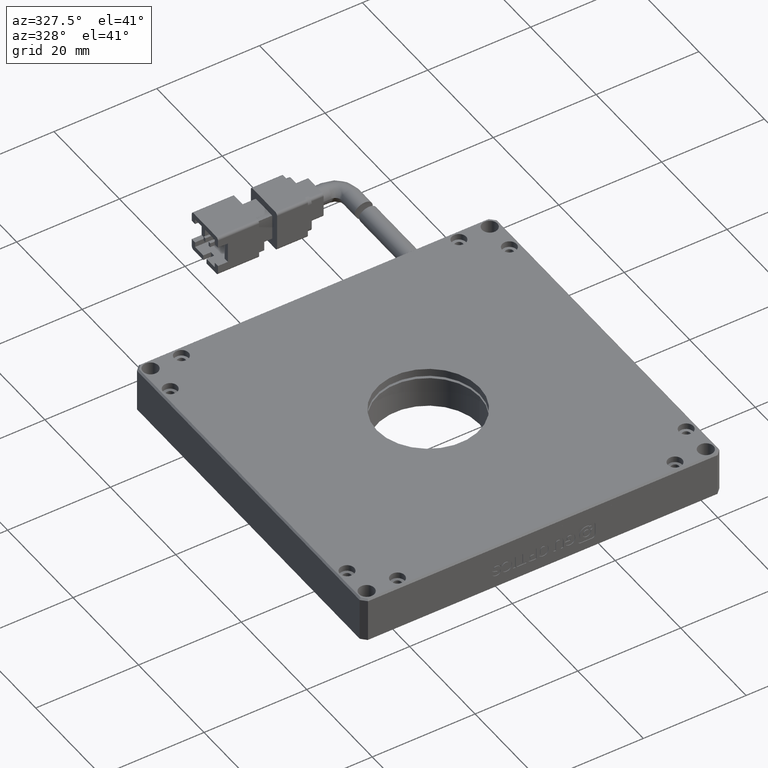
[diagram: clean part render]
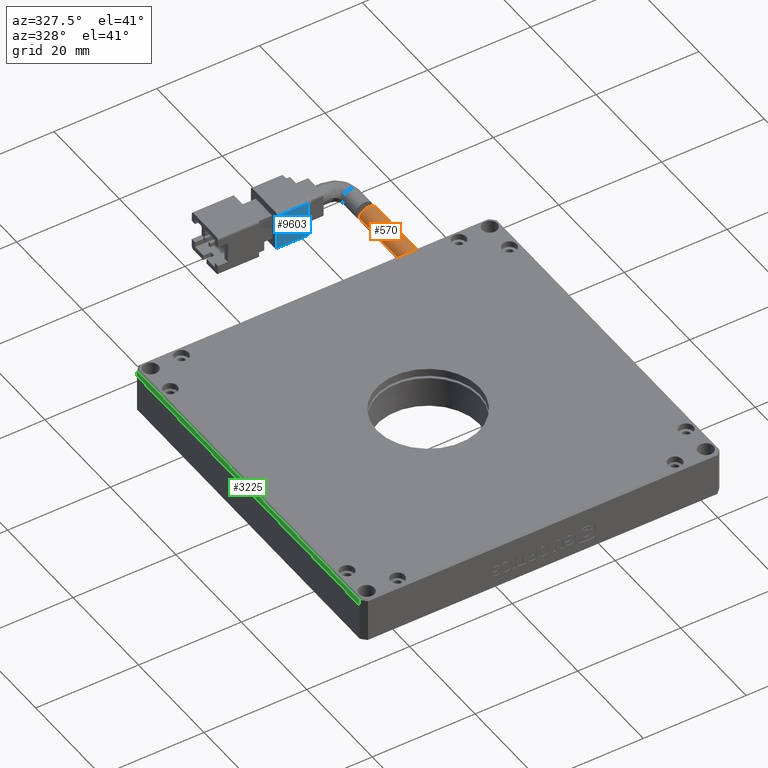
[diagram: same view with three faces highlighted in distinct colors, each labeled with its STEP entity id]
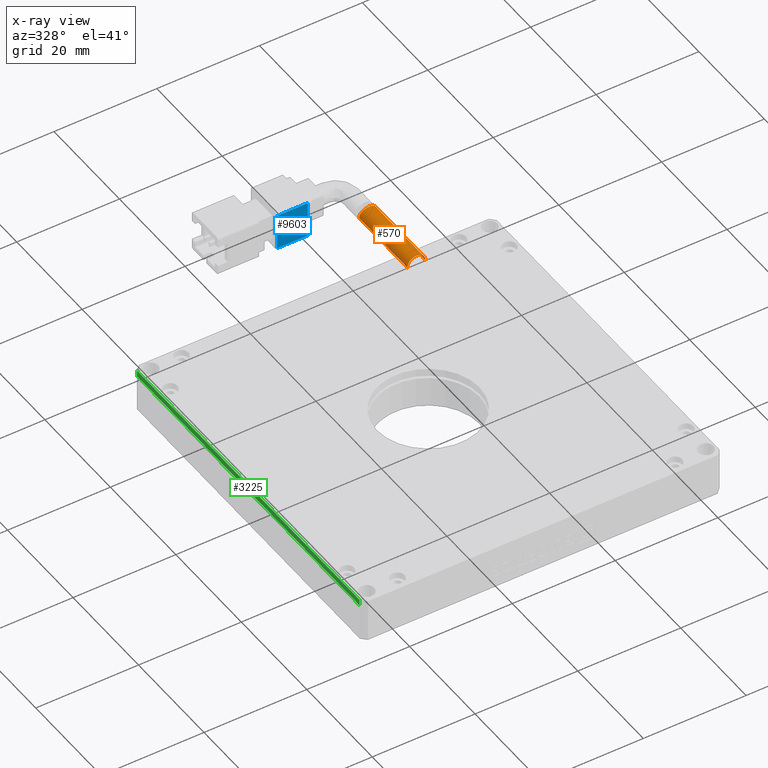
[diagram: x-ray of the same camera — body ghosted, the three highlighted faces saturated]
A machine part, auxiliary view with three faces highlighted in distinct colors.
The next image is the same camera in x-ray (body ghosted, the three faces saturated) — at least one of them is partly hidden behind the body in this view.
Their STEP definitions:

[orange] entity #570 — the highlighted cylindrical surface (edge-blend (fillet) strip) has radius 1.75 mm, axis along (0, -1, 0).
#85 = ORIENTED_EDGE ( 'NONE', *, *, #14717, .T. ) ;
#134 = CARTESIAN_POINT ( 'NONE',  ( 9.283692893400997900, 72.53591370558376600, 2.499999999999999600 ) ) ;
#570 = ADVANCED_FACE ( 'NONE', ( #13747 ), #11705, .T. ) ;
#1171 = CARTESIAN_POINT ( 'NONE',  ( 9.283692893401001500, 87.31675363808106700, 2.616052899521373700 ) ) ;
#1324 = CARTESIAN_POINT ( 'NONE',  ( 7.079876373890419600, 87.08334259466364800, 4.194023032864307300 ) ) ;
#1543 = CARTESIAN_POINT ( 'NONE',  ( 6.215091311080883900, 87.17399201523764400, 3.656271316457953900 ) ) ;
#2158 = CARTESIAN_POINT ( 'NONE',  ( 5.783692893400998800, 92.53591370558376600, 2.499999999999999600 ) ) ;
#2344 = EDGE_CURVE ( 'NONE', #17875, #17195, #19804, .T. ) ;
#2431 = DIRECTION ( 'NONE',  ( -0.0000000000000000000, 1.000000000000000000, -0.0000000000000000000 ) ) ;
#2841 = CARTESIAN_POINT ( 'NONE',  ( 7.421400568359374900, 87.08306173962964200, 4.250139874401408900 ) ) ;
#3207 = CARTESIAN_POINT ( 'NONE',  ( 5.783692893400999700, 87.27963314474406800, 2.499999999999999600 ) ) ;
#4382 = CARTESIAN_POINT ( 'NONE',  ( 9.051711307917891200, 87.27145208878776800, 3.378172957527924700 ) ) ;
#4497 = LINE ( 'NONE', #14418, #17063 ) ;
#4787 = CARTESIAN_POINT ( 'NONE',  ( 6.143040684642113700, 87.18863472532295600, 3.568417009494727400 ) ) ;
#5267 = DIRECTION ( 'NONE',  ( -1.000000000000000000, 0.0000000000000000000, 0.0000000000000000000 ) ) ;
#5439 = AXIS2_PLACEMENT_3D ( 'NONE', #10316, #7124, #5267 ) ;
#5515 = VERTEX_POINT ( 'NONE', #9505 ) ;
#6019 = CARTESIAN_POINT ( 'NONE',  ( 8.850826751519770500, 87.23514335908910800, 3.657841488376060400 ) ) ;
#6237 = CARTESIAN_POINT ( 'NONE',  ( 9.105568568188719100, 87.28170708176978100, 3.277736136175873700 ) ) ;
#7124 = DIRECTION ( 'NONE',  ( 0.0000000000000000000, -1.000000000000000000, 0.0000000000000000000 ) ) ;
#7442 = ORIENTED_EDGE ( 'NONE', *, *, #10713, .F. ) ;
#7509 = EDGE_CURVE ( 'NONE', #17195, #8992, #17585, .T. ) ;
#7728 = CARTESIAN_POINT ( 'NONE',  ( 7.994962853599077800, 87.11642060236631800, 4.203361838500303100 ) ) ;
#7860 = CARTESIAN_POINT ( 'NONE',  ( 9.272263341098568600, 87.31443533883148700, 2.730108151946735600 ) ) ;
#7934 = CARTESIAN_POINT ( 'NONE',  ( 6.458566352028460000, 87.13174397815302500, 3.899748863431738800 ) ) ;
#8694 = CARTESIAN_POINT ( 'NONE',  ( 5.783692893400998800, 72.53591370558376600, 2.499999999999999600 ) ) ;
#8738 = VECTOR ( 'NONE', #11989, 1000.000000000000000 ) ;
#8992 = VERTEX_POINT ( 'NONE', #134 ) ;
#9292 = CARTESIAN_POINT ( 'NONE',  ( 9.283692893400996100, 87.31675363808106700, 2.500000000000000000 ) ) ;
#9363 = CARTESIAN_POINT ( 'NONE',  ( 7.764754812016303000, 87.09653347672632200, 4.249716255481322600 ) ) ;
#9505 = CARTESIAN_POINT ( 'NONE',  ( 9.283692893400996100, 87.31675363808106700, 2.500000000000000000 ) ) ;
#9509 = CARTESIAN_POINT ( 'NONE',  ( 8.609378574019517700, 87.19485770877294300, 3.898983333046946300 ) ) ;
#10316 = CARTESIAN_POINT ( 'NONE',  ( 7.533692893400998800, 92.53591370558376600, 2.499999999999999600 ) ) ;
#10713 = EDGE_CURVE ( 'NONE', #5515, #8992, #4497, .T. ) ;
#10721 = CARTESIAN_POINT ( 'NONE',  ( 5.783692893400999700, 87.27963314474406800, 2.499999999999999600 ) ) ;
#10862 = CARTESIAN_POINT ( 'NONE',  ( 9.193664800917584800, 87.29876349347733800, 3.065826740936555600 ) ) ;
#11003 = CARTESIAN_POINT ( 'NONE',  ( 9.227533800888300800, 87.30549672430603900, 2.954400641859419100 ) ) ;
#11166 = EDGE_LOOP ( 'NONE', ( #7442, #85, #14582, #15553 ) ) ;
#11443 = CARTESIAN_POINT ( 'NONE',  ( 5.830061857775279000, 87.26510513697860500, 2.960785257606987700 ) ) ;
#11705 = CYLINDRICAL_SURFACE ( 'NONE', #5439, 1.749999999999999800 ) ;
#11967 = B_SPLINE_CURVE_WITH_KNOTS ( 'NONE', 3,
 ( #9292, #1171, #7860, #11003, #10862, #6237, #4382, #17561, #6019, #9509, #17496, #7728, #9363, #2841, #21026, #1324, #14451, #19721, #7934, #1543, #4787, #18000, #13102, #11443, #17782, #3207 ),
 .UNSPECIFIED., .F., .F.,
 ( 4, 2, 2, 2, 2, 2, 2, 2, 2, 2, 2, 2, 4 ),
 ( 2.153172013482225800E-017, 0.0003431607499797105100, 0.0006863214999593995500, 0.001029482249939088500, 0.001372642999918777400, 0.002058964499878154900, 0.002745285999837531900, 0.003088446749817219500, 0.003431607499796907100, 0.004117928999756286300, 0.004461089749735975200, 0.004804250499715664200, 0.005490571999675045500 ),
 .UNSPECIFIED. ) ;
#11989 = DIRECTION ( 'NONE',  ( 0.0000000000000000000, -1.000000000000000000, 0.0000000000000000000 ) ) ;
#13102 = CARTESIAN_POINT ( 'NONE',  ( 5.961584681775501200, 87.23053018535277700, 3.277188015046552200 ) ) ;
#13747 = FACE_OUTER_BOUND ( 'NONE', #11166, .T. ) ;
#14118 = CARTESIAN_POINT ( 'NONE',  ( 7.533692893400998800, 72.53591370558376600, 2.499999999999999600 ) ) ;
#14418 = CARTESIAN_POINT ( 'NONE',  ( 9.283692893400997900, 92.53591370558376600, 2.499999999999999600 ) ) ;
#14451 = CARTESIAN_POINT ( 'NONE',  ( 6.970444231491750700, 87.08728371330993000, 4.160870664720755000 ) ) ;
#14582 = ORIENTED_EDGE ( 'NONE', *, *, #2344, .T. ) ;
#14717 = EDGE_CURVE ( 'NONE', #5515, #17875, #11967, .T. ) ;
#15553 = ORIENTED_EDGE ( 'NONE', *, *, #7509, .T. ) ;
#16277 = DIRECTION ( 'NONE',  ( 0.0000000000000000000, -1.000000000000000000, 0.0000000000000000000 ) ) ;
#17063 = VECTOR ( 'NONE', #16277, 1000.000000000000000 ) ;
#17195 = VERTEX_POINT ( 'NONE', #8694 ) ;
#17496 = CARTESIAN_POINT ( 'NONE',  ( 8.414976011389661900, 87.16545615888125600, 4.028905358414464300 ) ) ;
#17561 = CARTESIAN_POINT ( 'NONE',  ( 8.924570730984688900, 87.24820439075557500, 3.568188415526132300 ) ) ;
#17585 = CIRCLE ( 'NONE', #19012, 1.749999999999999800 ) ;
#17782 = CARTESIAN_POINT ( 'NONE',  ( 5.783692893401001500, 87.27963314474405400, 2.732161965900024500 ) ) ;
#17875 = VERTEX_POINT ( 'NONE', #10721 ) ;
#18000 = CARTESIAN_POINT ( 'NONE',  ( 6.016479005774194800, 87.21684510767208600, 3.379483081756534000 ) ) ;
#19012 = AXIS2_PLACEMENT_3D ( 'NONE', #14118, #2431, #19102 ) ;
#19102 = DIRECTION ( 'NONE',  ( -1.000000000000000000, 0.0000000000000000000, 0.0000000000000000000 ) ) ;
#19721 = CARTESIAN_POINT ( 'NONE',  ( 6.651508948928983100, 87.10735056414900200, 4.028794678302347200 ) ) ;
#19804 = LINE ( 'NONE', #2158, #8738 ) ;
#21026 = CARTESIAN_POINT ( 'NONE',  ( 7.304934755872637600, 87.08118872053697100, 4.238773471091055200 ) ) ;

[blue] entity #9603 — the highlighted planar face has unit normal (0, 1, 0).
#763 = CARTESIAN_POINT ( 'NONE',  ( -1.466307106599000500, 91.53591370558376600, -0.9999999999999991100 ) ) ;
#1042 = VERTEX_POINT ( 'NONE', #10198 ) ;
#1621 = VECTOR ( 'NONE', #13919, 1000.000000000000000 ) ;
#1998 = FACE_OUTER_BOUND ( 'NONE', #7987, .T. ) ;
#2357 = ORIENTED_EDGE ( 'NONE', *, *, #4835, .F. ) ;
#2409 = DIRECTION ( 'NONE',  ( 0.0000000000000000000, 1.000000000000000000, 1.239088197126291300E-016 ) ) ;
#2443 = DIRECTION ( 'NONE',  ( -0.0000000000000000000, 1.239088197126291300E-016, -1.000000000000000000 ) ) ;
#2903 = EDGE_CURVE ( 'NONE', #16820, #3788, #3329, .T. ) ;
#3148 = ORIENTED_EDGE ( 'NONE', *, *, #13913, .F. ) ;
#3329 = LINE ( 'NONE', #8534, #20271 ) ;
#3788 = VERTEX_POINT ( 'NONE', #6473 ) ;
#4476 = LINE ( 'NONE', #763, #1621 ) ;
#4633 = EDGE_CURVE ( 'NONE', #3788, #1042, #12163, .T. ) ;
#4835 = EDGE_CURVE ( 'NONE', #19898, #16820, #4476, .T. ) ;
#5636 = CARTESIAN_POINT ( 'NONE',  ( -1.466307106599000500, 91.53591370558376600, -0.9999999999999991100 ) ) ;
#6473 = CARTESIAN_POINT ( 'NONE',  ( -7.466307106599000300, 91.53591370558376600, 5.999999999999998200 ) ) ;
#7030 = DIRECTION ( 'NONE',  ( 0.0000000000000000000, -1.239088197126291300E-016, 1.000000000000000000 ) ) ;
#7065 = VECTOR ( 'NONE', #11983, 1000.000000000000000 ) ;
#7987 = EDGE_LOOP ( 'NONE', ( #2357, #3148, #20780, #14604 ) ) ;
#8534 = CARTESIAN_POINT ( 'NONE',  ( -7.466307106599000300, 91.53591370558376600, -0.9999999999999986700 ) ) ;
#8649 = CARTESIAN_POINT ( 'NONE',  ( -1.466307106599000500, 91.53591370558376600, -0.9999999999999991100 ) ) ;
#9603 = ADVANCED_FACE ( 'NONE', ( #1998 ), #12237, .F. ) ;
#10101 = DIRECTION ( 'NONE',  ( -0.0000000000000000000, -0.0000000000000000000, 1.000000000000000000 ) ) ;
#10198 = CARTESIAN_POINT ( 'NONE',  ( -1.466307106599000500, 91.53591370558376600, 5.999999999999998200 ) ) ;
#11853 = CARTESIAN_POINT ( 'NONE',  ( -1.466307106599000500, 91.53591370558376600, 5.999999999999998200 ) ) ;
#11983 = DIRECTION ( 'NONE',  ( 1.000000000000000000, 0.0000000000000000000, 0.0000000000000000000 ) ) ;
#12163 = LINE ( 'NONE', #11853, #7065 ) ;
#12237 = PLANE ( 'NONE',  #20342 ) ;
#13135 = LINE ( 'NONE', #17487, #18069 ) ;
#13913 = EDGE_CURVE ( 'NONE', #1042, #19898, #13135, .T. ) ;
#13919 = DIRECTION ( 'NONE',  ( -1.000000000000000000, -0.0000000000000000000, -0.0000000000000000000 ) ) ;
#13947 = CARTESIAN_POINT ( 'NONE',  ( -7.466307106599000300, 91.53591370558376600, -0.9999999999999991100 ) ) ;
#14604 = ORIENTED_EDGE ( 'NONE', *, *, #2903, .F. ) ;
#16820 = VERTEX_POINT ( 'NONE', #13947 ) ;
#17487 = CARTESIAN_POINT ( 'NONE',  ( -1.466307106599000500, 91.53591370558376600, -0.9999999999999991100 ) ) ;
#18069 = VECTOR ( 'NONE', #2443, 1000.000000000000000 ) ;
#19898 = VERTEX_POINT ( 'NONE', #5636 ) ;
#20271 = VECTOR ( 'NONE', #10101, 1000.000000000000000 ) ;
#20342 = AXIS2_PLACEMENT_3D ( 'NONE', #8649, #2409, #7030 ) ;
#20780 = ORIENTED_EDGE ( 'NONE', *, *, #4633, .F. ) ;

[green] entity #3225 — the highlighted planar face has unit normal (1, 0, 0).
#444 = VERTEX_POINT ( 'NONE', #18045 ) ;
#612 = LINE ( 'NONE', #15003, #13217 ) ;
#1166 = VERTEX_POINT ( 'NONE', #12434 ) ;
#1218 = FACE_OUTER_BOUND ( 'NONE', #9464, .T. ) ;
#1509 = ORIENTED_EDGE ( 'NONE', *, *, #4736, .T. ) ;
#1728 = CARTESIAN_POINT ( 'NONE',  ( -47.46630710659900400, 72.53591370558378100, 4.500000000000000900 ) ) ;
#2333 = ORIENTED_EDGE ( 'NONE', *, *, #4534, .F. ) ;
#3225 = ADVANCED_FACE ( 'NONE', ( #1218 ), #21335, .F. ) ;
#3321 = CARTESIAN_POINT ( 'NONE',  ( -47.46630710659900400, 71.53591370558375200, 4.500000000000000900 ) ) ;
#4222 = VECTOR ( 'NONE', #5902, 1000.000000000000000 ) ;
#4534 = EDGE_CURVE ( 'NONE', #16456, #12419, #4741, .T. ) ;
#4736 = EDGE_CURVE ( 'NONE', #16456, #1166, #12661, .T. ) ;
#4741 = LINE ( 'NONE', #1728, #6296 ) ;
#4926 = DIRECTION ( 'NONE',  ( 0.0000000000000000000, -0.0000000000000000000, -1.000000000000000000 ) ) ;
#5779 = DIRECTION ( 'NONE',  ( 0.0000000000000000000, -1.000000000000000000, -0.0000000000000000000 ) ) ;
#5902 = DIRECTION ( 'NONE',  ( 0.0000000000000000000, -0.0000000000000000000, 1.000000000000000000 ) ) ;
#6246 = DIRECTION ( 'NONE',  ( 1.000000000000000000, 0.0000000000000000000, 0.0000000000000000000 ) ) ;
#6296 = VECTOR ( 'NONE', #11570, 1000.000000000000000 ) ;
#7912 = LINE ( 'NONE', #13934, #11243 ) ;
#9464 = EDGE_LOOP ( 'NONE', ( #11858, #9801, #2333, #1509 ) ) ;
#9801 = ORIENTED_EDGE ( 'NONE', *, *, #15547, .T. ) ;
#11243 = VECTOR ( 'NONE', #5779, 1000.000000000000000 ) ;
#11371 = AXIS2_PLACEMENT_3D ( 'NONE', #16051, #6246, #17716 ) ;
#11570 = DIRECTION ( 'NONE',  ( 0.0000000000000000000, 1.000000000000000000, 0.0000000000000000000 ) ) ;
#11858 = ORIENTED_EDGE ( 'NONE', *, *, #19844, .F. ) ;
#12345 = CARTESIAN_POINT ( 'NONE',  ( -47.46630710659900400, 3.535913705583767300, 6.000000000000000000 ) ) ;
#12419 = VERTEX_POINT ( 'NONE', #3321 ) ;
#12434 = CARTESIAN_POINT ( 'NONE',  ( -47.46630710659901100, 3.535913705583758800, 5.700000000000002000 ) ) ;
#12661 = LINE ( 'NONE', #12345, #4222 ) ;
#13217 = VECTOR ( 'NONE', #4926, 1000.000000000000000 ) ;
#13934 = CARTESIAN_POINT ( 'NONE',  ( -47.46630710659900400, 2.535913705583766400, 5.700000000000005500 ) ) ;
#15003 = CARTESIAN_POINT ( 'NONE',  ( -47.46630710659900400, 71.53591370558375200, 6.000000000000000000 ) ) ;
#15547 = EDGE_CURVE ( 'NONE', #444, #12419, #612, .T. ) ;
#16051 = CARTESIAN_POINT ( 'NONE',  ( -47.46630710659900400, 2.535913705583766400, 6.000000000000000000 ) ) ;
#16456 = VERTEX_POINT ( 'NONE', #18439 ) ;
#17716 = DIRECTION ( 'NONE',  ( 0.0000000000000000000, 0.0000000000000000000, -1.000000000000000000 ) ) ;
#18045 = CARTESIAN_POINT ( 'NONE',  ( -47.46630710659900400, 71.53591370558375200, 5.700000000000004600 ) ) ;
#18439 = CARTESIAN_POINT ( 'NONE',  ( -47.46630710659900400, 3.535913705583761900, 4.500000000000000900 ) ) ;
#19844 = EDGE_CURVE ( 'NONE', #444, #1166, #7912, .T. ) ;
#21335 = PLANE ( 'NONE',  #11371 ) ;